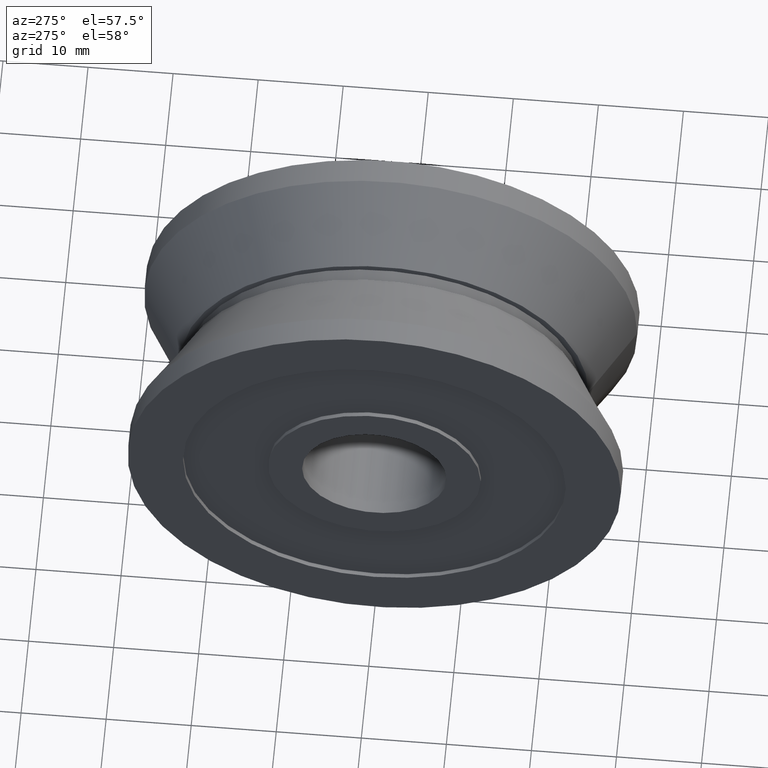
[diagram: clean part render]
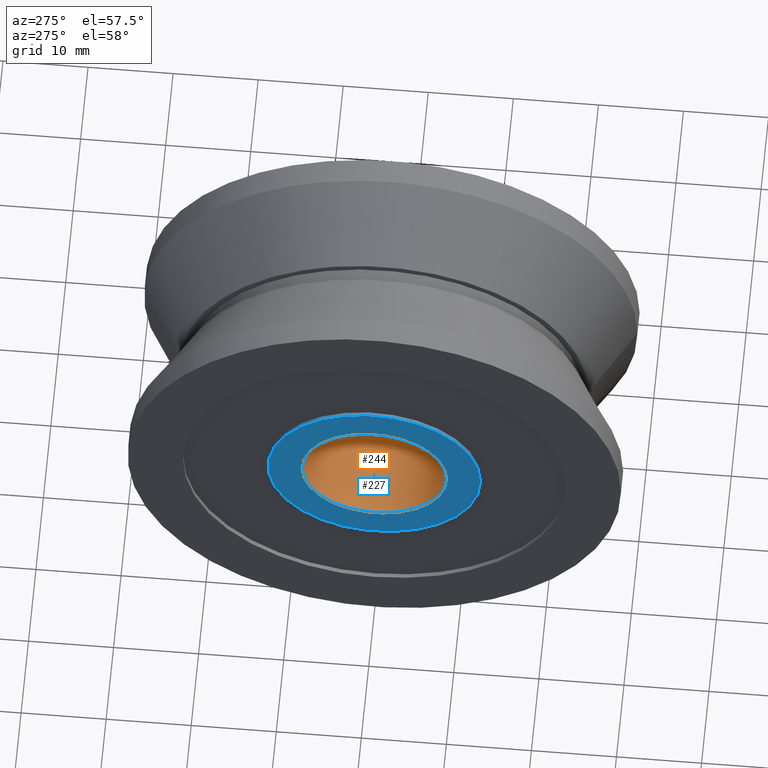
[diagram: same view with the hole feature highlighted: cylindrical wall and planar end face, labeled with their STEP entity ids]
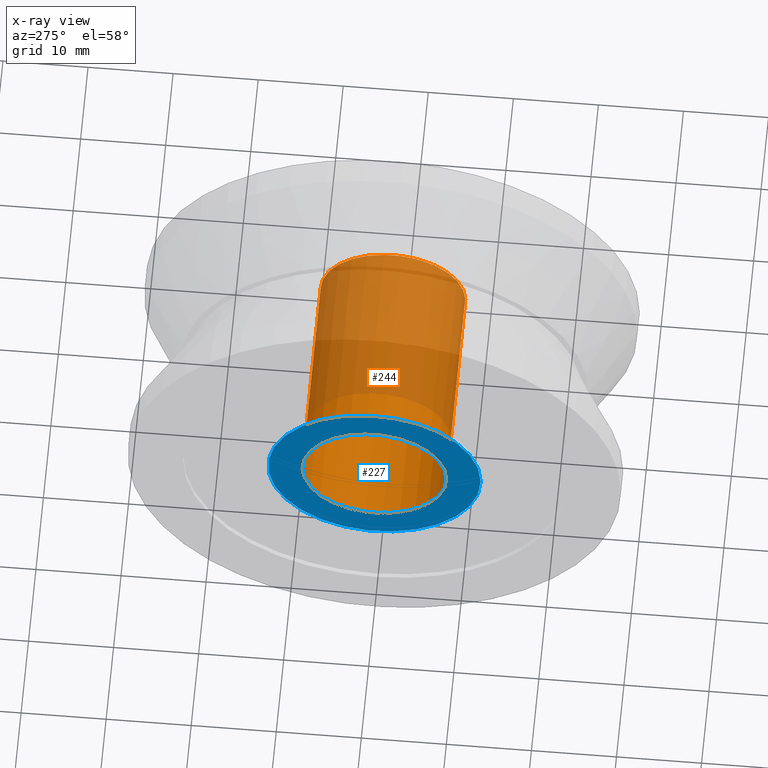
[diagram: x-ray of the same camera — body ghosted, the hole faces saturated]
A machine part, auxiliary view. The highlighted faces form one hole feature of diameter 17 mm: the cylindrical wall (entity #244, orange) and its adjacent planar end face (entity #227, blue) — they share a circular edge in the B-rep.
The next image is the same camera in x-ray (body ghosted, the hole faces saturated) — the bore reads through the body.
Wall:
#28=LINE('',#452,#38);
#38=VECTOR('',#387,8.5);
#46=CYLINDRICAL_SURFACE('',#303,8.5);
#72=FACE_OUTER_BOUND('',#98,.T.);
#98=EDGE_LOOP('',(#215,#216,#217,#218));
#100=CIRCLE('',#270,8.5);
#116=CIRCLE('',#302,8.5);
#118=VERTEX_POINT('',#392);
#134=VERTEX_POINT('',#449);
#136=EDGE_CURVE('',#118,#118,#100,.T.);
#161=EDGE_CURVE('',#134,#134,#116,.T.);
#162=EDGE_CURVE('',#134,#118,#28,.T.);
#215=ORIENTED_EDGE('',*,*,#161,.T.);
#216=ORIENTED_EDGE('',*,*,#162,.T.);
#217=ORIENTED_EDGE('',*,*,#136,.F.);
#218=ORIENTED_EDGE('',*,*,#162,.F.);
#244=ADVANCED_FACE('',(#72),#46,.F.);
#270=AXIS2_PLACEMENT_3D('',#393,#310,#311);
#302=AXIS2_PLACEMENT_3D('',#450,#383,#384);
#303=AXIS2_PLACEMENT_3D('',#451,#385,#386);
#310=DIRECTION('center_axis',(1.,0.,0.));
#311=DIRECTION('ref_axis',(0.,1.,0.));
#383=DIRECTION('center_axis',(1.,0.,0.));
#384=DIRECTION('ref_axis',(0.,1.,0.));
#385=DIRECTION('center_axis',(1.,0.,0.));
#386=DIRECTION('ref_axis',(0.,1.,0.));
#387=DIRECTION('',(-1.,0.,0.));
#392=CARTESIAN_POINT('',(-12.5,-8.5,-1.04094977927525E-15));
#393=CARTESIAN_POINT('Origin',(-12.5,0.,0.));
#449=CARTESIAN_POINT('',(12.5,-8.5,-1.04094977927525E-15));
#450=CARTESIAN_POINT('Origin',(12.5,0.,0.));
#451=CARTESIAN_POINT('Origin',(0.,0.,0.));
#452=CARTESIAN_POINT('',(0.,-8.5,-1.04094977927525E-15));
End face:
#47=FACE_BOUND('',#74,.T.);
#55=FACE_OUTER_BOUND('',#73,.T.);
#73=EDGE_LOOP('',(#163));
#74=EDGE_LOOP('',(#164));
#99=CIRCLE('',#269,12.5);
#100=CIRCLE('',#270,8.5);
#117=VERTEX_POINT('',#390);
#118=VERTEX_POINT('',#392);
#135=EDGE_CURVE('',#117,#117,#99,.T.);
#136=EDGE_CURVE('',#118,#118,#100,.T.);
#163=ORIENTED_EDGE('',*,*,#135,.F.);
#164=ORIENTED_EDGE('',*,*,#136,.T.);
#219=PLANE('',#268);
#227=ADVANCED_FACE('',(#55,#47),#219,.T.);
#268=AXIS2_PLACEMENT_3D('',#389,#306,#307);
#269=AXIS2_PLACEMENT_3D('',#391,#308,#309);
#270=AXIS2_PLACEMENT_3D('',#393,#310,#311);
#306=DIRECTION('center_axis',(-1.,0.,0.));
#307=DIRECTION('ref_axis',(0.,0.,1.));
#308=DIRECTION('center_axis',(1.,0.,0.));
#309=DIRECTION('ref_axis',(0.,1.,0.));
#310=DIRECTION('center_axis',(1.,0.,0.));
#311=DIRECTION('ref_axis',(0.,1.,0.));
#389=CARTESIAN_POINT('Origin',(-12.5,10.5,0.));
#390=CARTESIAN_POINT('',(-12.5,-12.5,-1.53080849893419E-15));
#391=CARTESIAN_POINT('Origin',(-12.5,0.,0.));
#392=CARTESIAN_POINT('',(-12.5,-8.5,-1.04094977927525E-15));
#393=CARTESIAN_POINT('Origin',(-12.5,0.,0.));